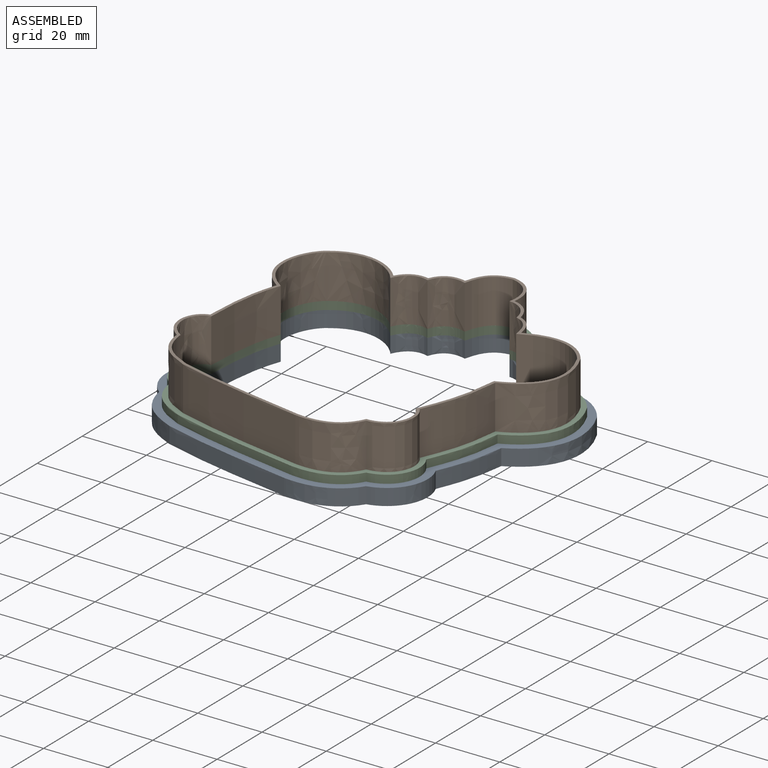
[diagram: assembled view]
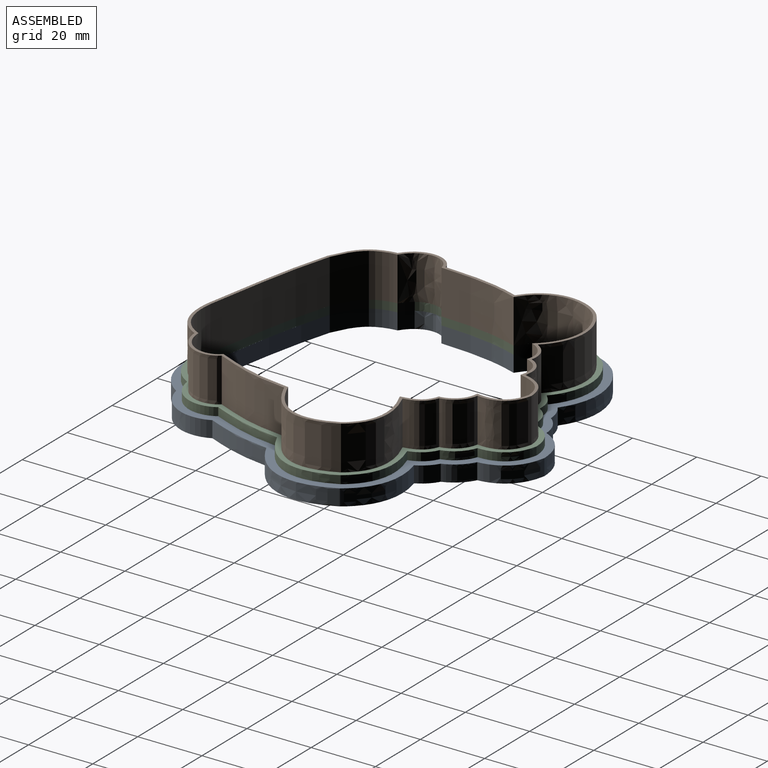
[diagram: assembled view, second angle]
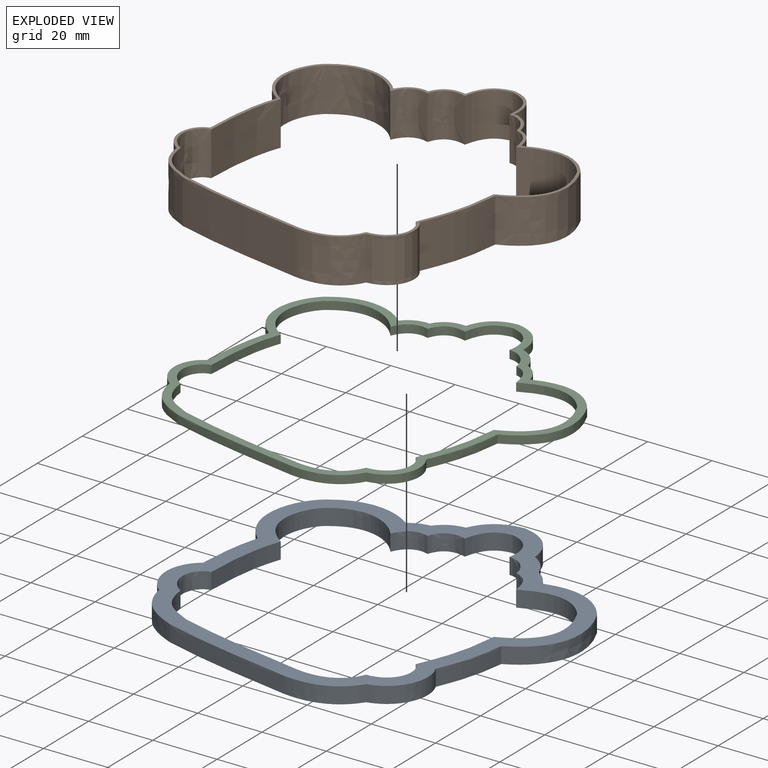
[diagram: exploded view]
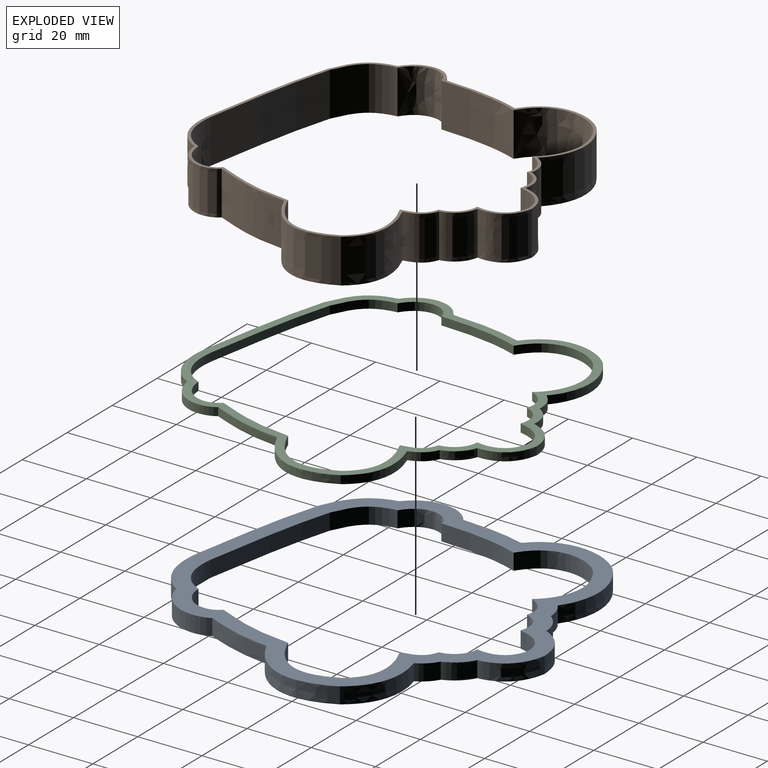
[diagram: exploded view, second angle]
ASSEMBLY  parts=3 mates=2
PART A: 36 faces, bbox 113.4x113.3x10 mm
  f0: plane 113.37x113.32mm, normal (0,0,1), area 1790.7mm2, adj f2,f3,f4,f5,f6,f7,f8,f9
  f1: plane 113.37x113.32mm, normal (0,0,-1), area 1790.7mm2, adj f2,f3,f4,f5,f6,f7,f8,f9
  f2: extruded ~29.33x7.41mm, area 170.3mm2, adj f0,f1,f3,f18
  f3: extruded ~20.04x5.08mm, area 103.2mm2, adj f0,f1,f2,f4
  f4: extruded ~19.85x5.08mm, area 116.5mm2, adj f0,f1,f3,f5
  f5: extruded ~15.31x13.97mm, area 110.6mm2, adj f0,f1,f4,f6
  f6: extruded ~41.83x8.86mm, area 217.3mm2, adj f0,f1,f5,f7
  f7: extruded ~20.09x8.14mm, area 116.1mm2, adj f0,f1,f6,f8
  f8: extruded ~17.76x10.44mm, area 117.2mm2, adj f0,f1,f7,f9
  f9: extruded ~20.85x5.8mm, area 110.4mm2, adj f0,f1,f8,f10
  f10: extruded ~29.39x12.5mm, area 178.9mm2, adj f0,f1,f9,f11
  f11: extruded ~22.27x8.48mm, area 128.7mm2, adj f0,f1,f10,f12
  f12: extruded ~5.08x5.05mm, area 35.5mm2, adj f0,f1,f11,f13
  f13: extruded ~7.1x6.11mm, area 48.7mm2, adj f0,f1,f12,f14
  f14: extruded ~12.62x11.79mm, area 95.4mm2, adj f0,f1,f13,f15
  f15: extruded ~12.76x8.27mm, area 81.8mm2, adj f0,f1,f14,f16
  f16: extruded ~7.99x5.08mm, area 47.4mm2, adj f0,f1,f15,f17
  f17: extruded ~6.22x5.08mm, area 34.2mm2, adj f0,f1,f16,f18
  f18: extruded ~24.59x5.08mm, area 134.1mm2, adj f0,f1,f2,f17
  f19: extruded ~23.32x7.27mm, area 140.1mm2, adj f0,f1,f20,f35
  f20: extruded ~25.25x5.08mm, area 130.4mm2, adj f0,f1,f19,f21
  f21: extruded ~13.68x5.08mm, area 89.7mm2, adj f0,f1,f20,f22
  f22: extruded ~13.34x11.03mm, area 93.7mm2, adj f0,f1,f21,f23
  f23: extruded ~40.81x8.6mm, area 212mm2, adj f0,f1,f22,f24
  f24: extruded ~16.07x7.76mm, area 97.7mm2, adj f0,f1,f23,f25
  f25: extruded ~12.46x8.6mm, area 91.9mm2, adj f0,f1,f24,f26
  f26: extruded ~24.94x6.88mm, area 132.1mm2, adj f0,f1,f25,f27
  f27: extruded ~23.27x12.13mm, area 149.8mm2, adj f0,f1,f26,f28
  f28: extruded ~21.31x6.04mm, area 121mm2, adj f0,f1,f27,f29
  f29: extruded ~8.16x5.66mm, area 54.2mm2, adj f0,f1,f28,f30
  f30: extruded ~7.05x7.05mm, area 55.3mm2, adj f0,f1,f29,f31
  f31: extruded ~11.22x7.13mm, area 75.6mm2, adj f0,f1,f30,f32
  f32: extruded ~8.81x8.72mm, area 69mm2, adj f0,f1,f31,f33
  f33: extruded ~8.73x5.08mm, area 55.8mm2, adj f0,f1,f32,f34
  f34: extruded ~8.53x5.08mm, area 54.5mm2, adj f0,f1,f33,f35
  f35: extruded ~22.19x6.67mm, area 127.3mm2, adj f0,f1,f19,f34
PART B: 36 faces, bbox 105.7x104.7x18.4 mm
  f0: plane 105.67x104.71mm, normal (0,0,1), area 306.9mm2, adj f2,f3,f4,f5,f6,f7,f8,f9
  f1: plane 105.67x104.71mm, normal (0,0,-1), area 306.9mm2, adj f2,f3,f4,f5,f6,f7,f8,f9
  f2: extruded ~24.41x13.72mm, area 392.5mm2, adj f0,f1,f3,f18
  f3: extruded ~24.17x13.72mm, area 336.9mm2, adj f0,f1,f2,f4
  f4: extruded ~14.91x13.72mm, area 255.6mm2, adj f0,f1,f3,f5
  f5: extruded ~13.72x13.67mm, area 260.8mm2, adj f0,f1,f4,f6
  f6: extruded ~40.99x13.72mm, area 574.9mm2, adj f0,f1,f5,f7
  f7: extruded ~16.79x13.72mm, area 272.2mm2, adj f0,f1,f6,f8
  f8: extruded ~13.72x13.51mm, area 260.5mm2, adj f0,f1,f7,f9
  f9: extruded ~24.12x13.72mm, area 344.9mm2, adj f0,f1,f8,f10
  f10: extruded ~24.36x13.72mm, area 418.3mm2, adj f0,f1,f9,f11
  f11: extruded ~21.4x13.72mm, area 328.6mm2, adj f0,f1,f10,f12
  f12: extruded ~13.72x7.54mm, area 135.8mm2, adj f0,f1,f11,f13
  f13: extruded ~13.72x7.14mm, area 145mm2, adj f0,f1,f12,f14
  f14: extruded ~13.72x11.34mm, area 211.4mm2, adj f0,f1,f13,f15
  f15: extruded ~13.72x9.53mm, area 191mm2, adj f0,f1,f14,f16
  f16: extruded ~13.72x8.62mm, area 144.8mm2, adj f0,f1,f15,f17
  f17: extruded ~13.72x8.17mm, area 133.7mm2, adj f0,f1,f16,f18
  f18: extruded ~22.53x13.72mm, area 343mm2, adj f0,f1,f2,f17
  f19: extruded ~23.32x13.72mm, area 378.2mm2, adj f0,f1,f20,f35
  f20: extruded ~25.25x13.72mm, area 352.1mm2, adj f0,f1,f19,f21
  f21: extruded ~13.72x13.68mm, area 242.3mm2, adj f0,f1,f20,f22
  f22: extruded ~13.72x13.34mm, area 253.1mm2, adj f0,f1,f21,f23
  f23: extruded ~40.81x13.72mm, area 572.3mm2, adj f0,f1,f22,f24
  f24: extruded ~16.07x13.72mm, area 263.8mm2, adj f0,f1,f23,f25
  f25: extruded ~13.72x12.46mm, area 248.1mm2, adj f0,f1,f24,f26
  f26: extruded ~24.94x13.72mm, area 356.7mm2, adj f0,f1,f25,f27
  f27: extruded ~23.27x13.72mm, area 404.4mm2, adj f0,f1,f26,f28
  f28: extruded ~21.31x13.72mm, area 326.6mm2, adj f0,f1,f27,f29
  f29: extruded ~13.72x8.16mm, area 146.4mm2, adj f0,f1,f28,f30
  f30: extruded ~13.72x7.05mm, area 149.4mm2, adj f0,f1,f29,f31
  f31: extruded ~13.72x11.22mm, area 204mm2, adj f0,f1,f30,f32
  f32: extruded ~13.72x8.81mm, area 186.3mm2, adj f0,f1,f31,f33
  f33: extruded ~13.72x8.73mm, area 150.8mm2, adj f0,f1,f32,f34
  f34: extruded ~13.72x8.53mm, area 147.1mm2, adj f0,f1,f33,f35
  f35: extruded ~22.19x13.72mm, area 343.8mm2, adj f0,f1,f19,f34
PART C: 36 faces, bbox 105.8x105.7x5 mm
  f0: plane 105.78x105.72mm, normal (0,0,1), area 883mm2, adj f2,f3,f4,f5,f6,f7,f8,f9
  f1: plane 105.78x105.72mm, normal (0,0,-1), area 883mm2, adj f2,f3,f4,f5,f6,f7,f8,f9
  f2: extruded ~26.38x6.79mm, area 77.6mm2, adj f0,f1,f3,f18
  f3: extruded ~22.4x3.41mm, area 57.7mm2, adj f0,f1,f2,f4
  f4: extruded ~16.99x4.81mm, area 51.8mm2, adj f0,f1,f3,f5
  f5: extruded ~14.29x12.52mm, area 51mm2, adj f0,f1,f4,f6
  f6: extruded ~41.32x8.73mm, area 107.3mm2, adj f0,f1,f5,f7
  f7: extruded ~18.1x7.9mm, area 53.4mm2, adj f0,f1,f6,f8
  f8: extruded ~15.3x9.49mm, area 52.4mm2, adj f0,f1,f7,f9
  f9: extruded ~22.74x6.28mm, area 60.2mm2, adj f0,f1,f8,f10
  f10: extruded ~26.36x12.31mm, area 82.1mm2, adj f0,f1,f9,f11
  f11: extruded ~21.63x7.26mm, area 61.8mm2, adj f0,f1,f10,f12
  f12: extruded ~6.47x5.26mm, area 22mm2, adj f0,f1,f11,f13
  f13: extruded ~7.19x6.52mm, area 25.7mm2, adj f0,f1,f12,f14
  f14: extruded ~11.75x9.48mm, area 42.3mm2, adj f0,f1,f13,f15
  f15: extruded ~10.83x8.31mm, area 37.3mm2, adj f0,f1,f14,f16
  f16: extruded ~8.38x4.24mm, area 25.3mm2, adj f0,f1,f15,f17
  f17: extruded ~7.44x3.11mm, area 21.3mm2, adj f0,f1,f16,f18
  f18: extruded ~23.26x4.99mm, area 64.4mm2, adj f0,f1,f2,f17
  f19: extruded ~23.32x7.27mm, area 70mm2, adj f0,f1,f20,f35
  f20: extruded ~25.25x3.96mm, area 65.2mm2, adj f0,f1,f19,f21
  f21: extruded ~13.68x4.66mm, area 44.9mm2, adj f0,f1,f20,f22
  f22: extruded ~13.34x11.03mm, area 46.9mm2, adj f0,f1,f21,f23
  f23: extruded ~40.81x8.6mm, area 106mm2, adj f0,f1,f22,f24
  f24: extruded ~16.07x7.76mm, area 48.9mm2, adj f0,f1,f23,f25
  f25: extruded ~12.46x8.6mm, area 45.9mm2, adj f0,f1,f24,f26
  f26: extruded ~24.94x6.88mm, area 66.1mm2, adj f0,f1,f25,f27
  f27: extruded ~23.27x12.13mm, area 74.9mm2, adj f0,f1,f26,f28
  f28: extruded ~21.31x6.04mm, area 60.5mm2, adj f0,f1,f27,f29
  f29: extruded ~8.16x5.66mm, area 27.1mm2, adj f0,f1,f28,f30
  f30: extruded ~7.05x7.05mm, area 27.7mm2, adj f0,f1,f29,f31
  f31: extruded ~11.22x7.13mm, area 37.8mm2, adj f0,f1,f30,f32
  f32: extruded ~8.81x8.72mm, area 34.5mm2, adj f0,f1,f31,f33
  f33: extruded ~8.73x4.62mm, area 27.9mm2, adj f0,f1,f32,f34
  f34: extruded ~8.53x4.79mm, area 27.2mm2, adj f0,f1,f33,f35
  f35: extruded ~22.19x6.67mm, area 63.7mm2, adj f0,f1,f19,f34
PLACE A at identity
PLACE B t=(110.89,-7.53,7.62)mm
PLACE C t=(229.38,-13.25,5.08)mm
MATE fastened C.f1 <-> A.f0  axis (0,0,1) through (67.06,3.95,5.08)mm
MATE fastened B.f1 <-> C.f0  axis (0,0,1) through (67.06,3.95,7.62)mm
